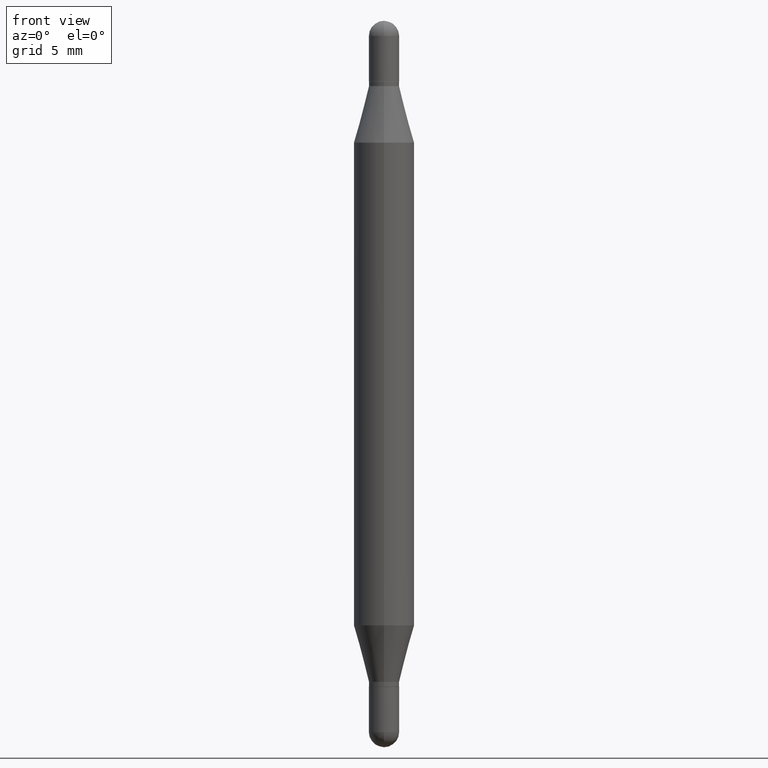
[diagram: clean part render]
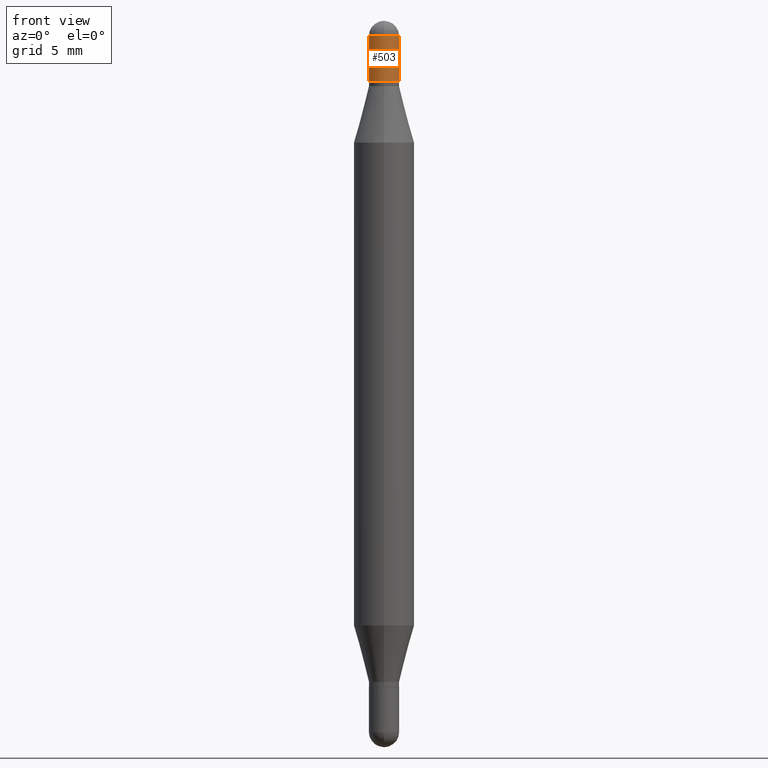
[diagram: same view with one face highlighted and labeled with its STEP entity id]
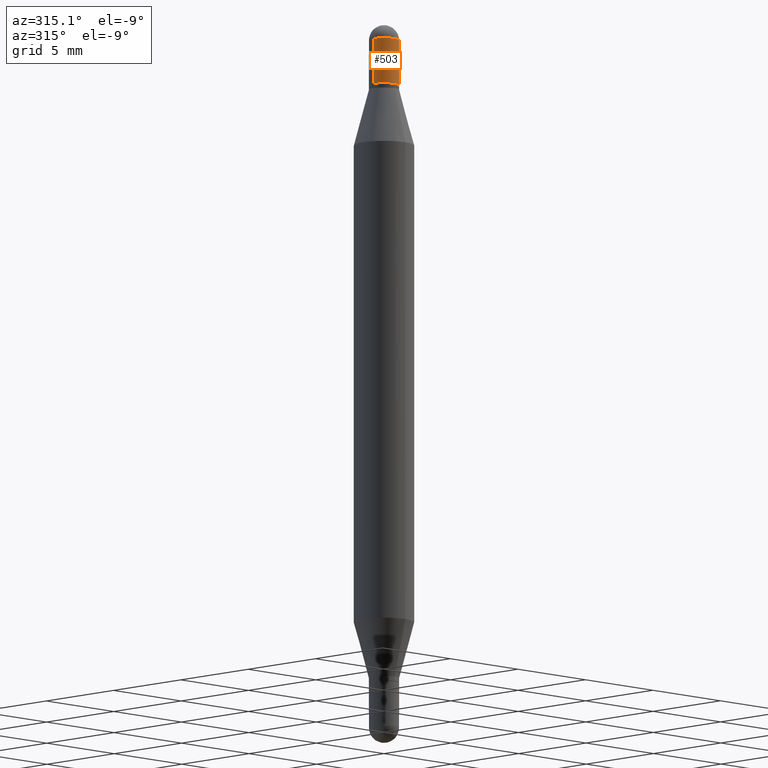
[diagram: same view with one face highlighted and labeled with its STEP entity id]
A machine part, front view. The second image highlights one B-rep face of the part: STEP entity #503.
A second angle (auxiliary view) of the same face is appended — the face is thin or edge-on in the first view.
In plain terms, the highlighted cylindrical surface (edge-blend (fillet) strip) has radius 0.7937 mm, axis along (-0, -0, -1).
Its self-contained STEP definition (entity closure, byte-faithful):
#6 = AXIS2_PLACEMENT_3D ( 'NONE', #85, #587, #935 ) ;
#35 = CARTESIAN_POINT ( 'NONE',  ( 0.03125000000000000000, -6.620695459489128067E-16, -0.1250000000000001665 ) ) ;
#79 = DIRECTION ( 'NONE',  ( 2.445468806185136597E-29, 3.479614466977828254E-15, 1.000000000000000000 ) ) ;
#85 = CARTESIAN_POINT ( 'NONE',  ( 3.591782309084418816E-29, -1.176381059920458814E-16, -0.03125000000000038164 ) ) ;
#103 = ORIENTED_EDGE ( 'NONE', *, *, #455, .T. ) ;
#120 = EDGE_LOOP ( 'NONE', ( #540, #103, #142, #724, #850 ) ) ;
#135 = DIRECTION ( 'NONE',  ( 1.000000000000000000, -6.982962677686262766E-15, 0.000000000000000000 ) ) ;
#142 = ORIENTED_EDGE ( 'NONE', *, *, #1056, .T. ) ;
#217 = CARTESIAN_POINT ( 'NONE',  ( -2.182175836776606071E-16, -0.03125000000000022204, -0.03125000000000027756 ) ) ;
#227 = EDGE_CURVE ( 'NONE', #382, #471, #847, .T. ) ;
#237 = CARTESIAN_POINT ( 'NONE',  ( 0.000000000000000000, -5.228321854365732350E-15, -1.500000000000000444 ) ) ;
#256 = AXIS2_PLACEMENT_3D ( 'NONE', #387, #1002, #916 ) ;
#362 = LINE ( 'NONE', #790, #921 ) ;
#372 = VERTEX_POINT ( 'NONE', #35 ) ;
#380 = DIRECTION ( 'NONE',  ( -2.445468806185136597E-29, -3.479614466977828254E-15, -1.000000000000000000 ) ) ;
#382 = VERTEX_POINT ( 'NONE', #1066 ) ;
#387 = CARTESIAN_POINT ( 'NONE',  ( 3.591782309084418816E-29, -1.176381059920458814E-16, -0.03125000000000038164 ) ) ;
#417 = CIRCLE ( 'NONE', #256, 0.03125000000000000694 ) ;
#434 = VERTEX_POINT ( 'NONE', #634 ) ;
#455 = EDGE_CURVE ( 'NONE', #382, #828, #925, .T. ) ;
#459 = CARTESIAN_POINT ( 'NONE',  ( -0.03125000000000000000, -6.635447170127155839E-17, -0.1250000000000001665 ) ) ;
#471 = VERTEX_POINT ( 'NONE', #217 ) ;
#479 = CARTESIAN_POINT ( 'NONE',  ( -0.03125000000000000000, -5.013931291935371988E-15, -1.500000000000000444 ) ) ;
#485 = FACE_OUTER_BOUND ( 'NONE', #120, .T. ) ;
#492 = EDGE_CURVE ( 'NONE', #471, #434, #417, .T. ) ;
#503 = ADVANCED_FACE ( 'NONE', ( #485 ), #1092, .T. ) ;
#540 = ORIENTED_EDGE ( 'NONE', *, *, #227, .F. ) ;
#565 = CIRCLE ( 'NONE', #807, 0.03125000000000000000 ) ;
#587 = DIRECTION ( 'NONE',  ( 2.445468806185136597E-29, 3.479614466977828254E-15, 1.000000000000000000 ) ) ;
#634 = CARTESIAN_POINT ( 'NONE',  ( 0.03125000000000000694, -4.989626178093275942E-16, -0.03125000000000038164 ) ) ;
#661 = VECTOR ( 'NONE', #1077, 39.37007874015748143 ) ;
#724 = ORIENTED_EDGE ( 'NONE', *, *, #731, .F. ) ;
#731 = EDGE_CURVE ( 'NONE', #434, #372, #362, .T. ) ;
#790 = CARTESIAN_POINT ( 'NONE',  ( 0.03125000000000000000, -5.446539438043427395E-15, -1.500000000000000444 ) ) ;
#807 = AXIS2_PLACEMENT_3D ( 'NONE', #1094, #79, #1010 ) ;
#828 = VERTEX_POINT ( 'NONE', #459 ) ;
#847 = CIRCLE ( 'NONE', #6, 0.03125000000000000694 ) ;
#850 = ORIENTED_EDGE ( 'NONE', *, *, #492, .F. ) ;
#881 = AXIS2_PLACEMENT_3D ( 'NONE', #237, #380, #135 ) ;
#885 = DIRECTION ( 'NONE',  ( -2.445468806185136877E-29, -3.479614466977828648E-15, -1.000000000000000000 ) ) ;
#916 = DIRECTION ( 'NONE',  ( 1.000000000000000000, -6.982962677686265133E-15, 0.000000000000000000 ) ) ;
#921 = VECTOR ( 'NONE', #885, 39.37007874015748143 ) ;
#925 = LINE ( 'NONE', #479, #661 ) ;
#935 = DIRECTION ( 'NONE',  ( 1.000000000000000000, -6.982962677686265133E-15, 0.000000000000000000 ) ) ;
#1002 = DIRECTION ( 'NONE',  ( 2.445468806185136597E-29, 3.479614466977828254E-15, 1.000000000000000000 ) ) ;
#1010 = DIRECTION ( 'NONE',  ( 1.000000000000000000, -6.982962677686266711E-15, 0.000000000000000000 ) ) ;
#1056 = EDGE_CURVE ( 'NONE', #828, #372, #565, .T. ) ;
#1066 = CARTESIAN_POINT ( 'NONE',  ( -0.03125000000000000694, -6.635447170127136118E-17, -0.03125000000000038164 ) ) ;
#1077 = DIRECTION ( 'NONE',  ( -2.445468806185136877E-29, -3.479614466977828648E-15, -1.000000000000000000 ) ) ;
#1092 = CYLINDRICAL_SURFACE ( 'NONE', #881, 0.03125000000000000000 ) ;
#1094 = CARTESIAN_POINT ( 'NONE',  ( 3.362519608504562821E-29, -4.438519622712169720E-16, -0.1250000000000001665 ) ) ;